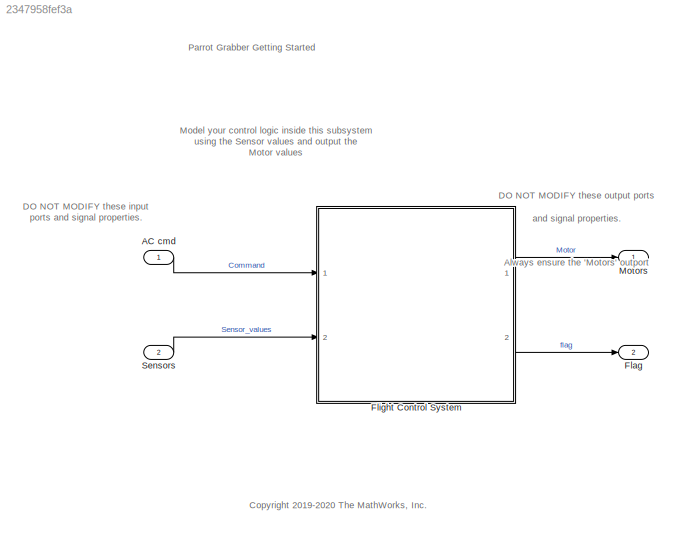
MODEL slx_2347958fef3a
KIND model
CONFIG AbsTol = auto
CONFIG EnableMultiTasking = off
CONFIG FixedStep = auto
CONFIG InitFcn = load('BusDefinitions.mat')
CONFIG MaxStep = auto
CONFIG MinStep = auto
CONFIG RelTol = 1e-3
CONFIG SampleTimeConstraint = Unconstrained
CONFIG SolverName = FixedStepAuto
CONFIG StartTime = 0.0
CONFIG StopTime = 100
BLOCK [Inport] AC cmd
  BusOutputAsStruct = on
  OutDataTypeStr = Bus: CommandBus
BLOCK [Outport] Flag
  OutDataTypeStr = uint8
  Port = 2
  PortDimensions = 1
  VectorParamsAs1DForOutWhenUnconnected = off
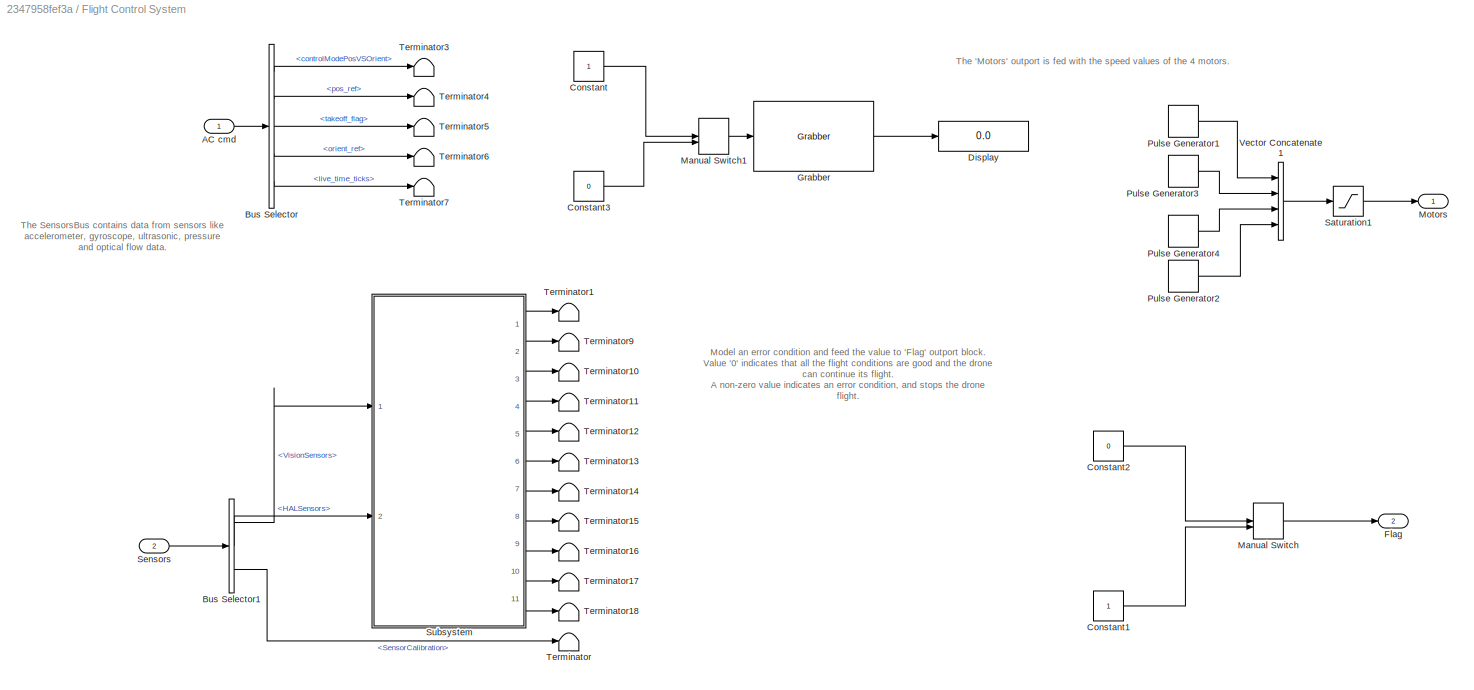
BLOCK [SubSystem] Flight Control System
  InitFcn = codertarget.parrot.internal.fcsSubsystemCallback(gcb);
  Ports = [2, 2]
  RTWSystemCode = Reusable function
  RequestExecContextInheritance = off
BLOCK [Inport] Flight Control System/AC cmd
BLOCK [BusSelector] Flight Control System/Bus Selector
  OutputSignals = controlModePosVSOrient,pos_ref,takeoff_flag,orient_ref,live_time_ticks
  Ports = [1, 5]
BLOCK [BusSelector] Flight Control System/Bus Selector1
  OutputSignals = VisionSensors,HALSensors,SensorCalibration
  Ports = [1, 3]
BLOCK [Constant] Flight Control System/Constant
BLOCK [Constant] Flight Control System/Constant1
  OutDataTypeStr = uint8
BLOCK [Constant] Flight Control System/Constant2
  OutDataTypeStr = uint8
  Value = 0
BLOCK [Constant] Flight Control System/Constant3
  Value = 0
BLOCK [Display] Flight Control System/Display
  Decimation = 1
  Ports = [1]
BLOCK [Outport] Flight Control System/Flag
  Port = 2
  VectorParamsAs1DForOutWhenUnconnected = off
BLOCK [Reference] Flight Control System/Grabber  REF=parrotlib/Grabber
  Ports = [1, 1]
  SourceBlock = parrotlib/Grabber
  SourceProductBaseCode = MINIDRONES
  SourceType = parrot.Grabber
BLOCK [ManualSwitch] Flight Control System/Manual Switch
BLOCK [ManualSwitch] Flight Control System/Manual Switch1
BLOCK [Outport] Flight Control System/Motors
  VectorParamsAs1DForOutWhenUnconnected = off
BLOCK [DiscretePulseGenerator] Flight Control System/Pulse Generator1
  Amplitude = 400
  Period = 1600
  Ports = [0, 1]
  PulseWidth = 400
  SampleTime = Ts
BLOCK [DiscretePulseGenerator] Flight Control System/Pulse Generator2
  Amplitude = 400
  Period = 1600
  PhaseDelay = 1200
  Ports = [0, 1]
  PulseWidth = 400
  SampleTime = Ts
BLOCK [DiscretePulseGenerator] Flight Control System/Pulse Generator3
  Amplitude = 400
  Period = 1600
  PhaseDelay = 400
  Ports = [0, 1]
  PulseWidth = 400
  SampleTime = Ts
BLOCK [DiscretePulseGenerator] Flight Control System/Pulse Generator4
  Amplitude = 400
  Period = 1600
  PhaseDelay = 800
  Ports = [0, 1]
  PulseWidth = 400
  SampleTime = Ts
BLOCK [Saturate] Flight Control System/Saturation1
  LowerLimit = 0
  OutDataTypeStr = single
  UpperLimit = 500
BLOCK [Inport] Flight Control System/Sensors
  Port = 2
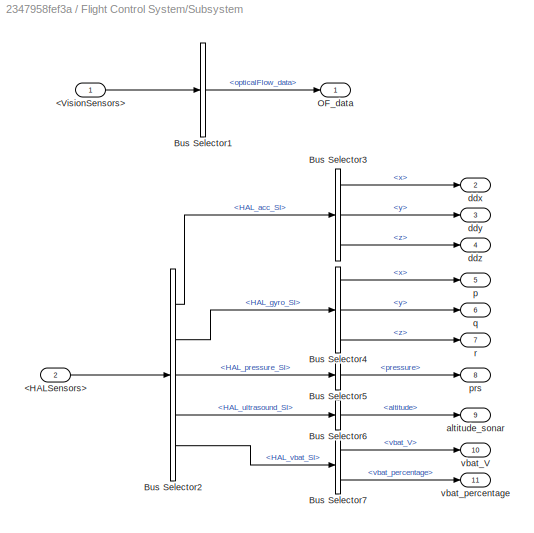
BLOCK [SubSystem] Flight Control System/Subsystem
  Ports = [2, 11]
  RequestExecContextInheritance = off
BLOCK [Inport] Flight Control System/Subsystem/<HALSensors>
  Port = 2
BLOCK [Inport] Flight Control System/Subsystem/<VisionSensors>
BLOCK [BusSelector] Flight Control System/Subsystem/Bus Selector1
  OutputSignals = opticalFlow_data
  Ports = [1, 1]
BLOCK [BusSelector] Flight Control System/Subsystem/Bus Selector2
  OutputSignals = HAL_acc_SI,HAL_gyro_SI,HAL_pressure_SI,HAL_ultrasound_SI,HAL_vbat_SI
  Ports = [1, 5]
BLOCK [BusSelector] Flight Control System/Subsystem/Bus Selector3
  OutputSignals = x,y,z
  Ports = [1, 3]
BLOCK [BusSelector] Flight Control System/Subsystem/Bus Selector4
  OutputSignals = x,y,z
  Ports = [1, 3]
BLOCK [BusSelector] Flight Control System/Subsystem/Bus Selector5
  OutputSignals = pressure
  Ports = [1, 1]
BLOCK [BusSelector] Flight Control System/Subsystem/Bus Selector6
  OutputSignals = altitude
  Ports = [1, 1]
BLOCK [BusSelector] Flight Control System/Subsystem/Bus Selector7
  OutputSignals = vbat_V,vbat_percentage
  Ports = [1, 2]
BLOCK [Outport] Flight Control System/Subsystem/OF_data
  VectorParamsAs1DForOutWhenUnconnected = off
BLOCK [Outport] Flight Control System/Subsystem/altitude_sonar
  Port = 9
  VectorParamsAs1DForOutWhenUnconnected = off
BLOCK [Outport] Flight Control System/Subsystem/ddx
  Port = 2
  VectorParamsAs1DForOutWhenUnconnected = off
BLOCK [Outport] Flight Control System/Subsystem/ddy
  Port = 3
  VectorParamsAs1DForOutWhenUnconnected = off
BLOCK [Outport] Flight Control System/Subsystem/ddz
  Port = 4
  VectorParamsAs1DForOutWhenUnconnected = off
BLOCK [Outport] Flight Control System/Subsystem/p
  Port = 5
  VectorParamsAs1DForOutWhenUnconnected = off
BLOCK [Outport] Flight Control System/Subsystem/prs
  Port = 8
  VectorParamsAs1DForOutWhenUnconnected = off
BLOCK [Outport] Flight Control System/Subsystem/q
  Port = 6
  VectorParamsAs1DForOutWhenUnconnected = off
BLOCK [Outport] Flight Control System/Subsystem/r
  Port = 7
  VectorParamsAs1DForOutWhenUnconnected = off
BLOCK [Outport] Flight Control System/Subsystem/vbat_V
  Port = 10
  VectorParamsAs1DForOutWhenUnconnected = off
BLOCK [Outport] Flight Control System/Subsystem/vbat_percentage
  Port = 11
  VectorParamsAs1DForOutWhenUnconnected = off
BLOCK [Terminator] Flight Control System/Terminator
BLOCK [Terminator] Flight Control System/Terminator1
BLOCK [Terminator] Flight Control System/Terminator10
BLOCK [Terminator] Flight Control System/Terminator11
BLOCK [Terminator] Flight Control System/Terminator12
BLOCK [Terminator] Flight Control System/Terminator13
BLOCK [Terminator] Flight Control System/Terminator14
BLOCK [Terminator] Flight Control System/Terminator15
BLOCK [Terminator] Flight Control System/Terminator16
BLOCK [Terminator] Flight Control System/Terminator17
BLOCK [Terminator] Flight Control System/Terminator18
BLOCK [Terminator] Flight Control System/Terminator3
BLOCK [Terminator] Flight Control System/Terminator4
BLOCK [Terminator] Flight Control System/Terminator5
BLOCK [Terminator] Flight Control System/Terminator6
BLOCK [Terminator] Flight Control System/Terminator7
BLOCK [Terminator] Flight Control System/Terminator9
BLOCK [Concatenate] Flight Control System/Vector Concatenate1
  NumInputs = 4
  Ports = [4, 1]
BLOCK [Outport] Motors
  OutDataTypeStr = single
  PortDimensions = [1 4]
  VectorParamsAs1DForOutWhenUnconnected = off
BLOCK [Inport] Sensors
  BusOutputAsStruct = on
  OutDataTypeStr = Bus: SensorsBus
  Port = 2
ANNOTATION (root): <copyright redacted>
ANNOTATION (root): DO NOT MODIFY these input ports and signal properties.
ANNOTATION (root): DO NOT MODIFY these output ports and signal properties. Always ensure the 'Motors' outport is fed with a 1 x 4 single vector. Always ensure the 'Flag' outport is fed with a 1 x 1 uint8 value.
ANNOTATION (root): Model your control logic inside this subsystem using the Sensor values and output the Motor values
ANNOTATION (root): Parrot Grabber Getting Started
ANNOTATION Flight Control System: Model an error condition and feed the value to 'Flag' outport block. Value '0' indicates that all the flight conditions are good and the drone can continue its flight. A non-zero value indicates an error condition, and stops the drone flight.
ANNOTATION Flight Control System: The 'Motors' outport is fed with the speed values of the 4 motors.
ANNOTATION Flight Control System: The SensorsBus contains data from sensors like accelerometer, gyroscope, ultrasonic, pressure and optical flow data.
LINE AC cmd:1 -> Flight Control System:1
LINE Flight Control System/AC cmd:1 -> Flight Control System/Bus Selector:1
LINE Flight Control System/Bus Selector1:1 -> Flight Control System/Subsystem:1
LINE Flight Control System/Bus Selector1:2 -> Flight Control System/Subsystem:2
LINE Flight Control System/Bus Selector1:3 -> Flight Control System/Terminator:1
LINE Flight Control System/Bus Selector:1 -> Flight Control System/Terminator3:1
LINE Flight Control System/Bus Selector:2 -> Flight Control System/Terminator4:1
LINE Flight Control System/Bus Selector:3 -> Flight Control System/Terminator5:1
LINE Flight Control System/Bus Selector:4 -> Flight Control System/Terminator6:1
LINE Flight Control System/Bus Selector:5 -> Flight Control System/Terminator7:1
LINE Flight Control System/Constant1:1 -> Flight Control System/Manual Switch:2
LINE Flight Control System/Constant2:1 -> Flight Control System/Manual Switch:1
LINE Flight Control System/Constant3:1 -> Flight Control System/Manual Switch1:2
LINE Flight Control System/Constant:1 -> Flight Control System/Manual Switch1:1
LINE Flight Control System/Grabber:1 -> Flight Control System/Display:1
LINE Flight Control System/Manual Switch1:1 -> Flight Control System/Grabber:1
LINE Flight Control System/Manual Switch:1 -> Flight Control System/Flag:1
LINE Flight Control System/Pulse Generator1:1 -> Flight Control System/Vector Concatenate1:1
LINE Flight Control System/Pulse Generator2:1 -> Flight Control System/Vector Concatenate1:4
LINE Flight Control System/Pulse Generator3:1 -> Flight Control System/Vector Concatenate1:2
LINE Flight Control System/Pulse Generator4:1 -> Flight Control System/Vector Concatenate1:3
LINE Flight Control System/Saturation1:1 -> Flight Control System/Motors:1
LINE Flight Control System/Sensors:1 -> Flight Control System/Bus Selector1:1
LINE Flight Control System/Subsystem/<HALSensors>:1 -> Flight Control System/Subsystem/Bus Selector2:1
LINE Flight Control System/Subsystem/<VisionSensors>:1 -> Flight Control System/Subsystem/Bus Selector1:1
LINE Flight Control System/Subsystem/Bus Selector1:1 -> Flight Control System/Subsystem/OF_data:1
LINE Flight Control System/Subsystem/Bus Selector2:1 -> Flight Control System/Subsystem/Bus Selector3:1
LINE Flight Control System/Subsystem/Bus Selector2:2 -> Flight Control System/Subsystem/Bus Selector4:1
LINE Flight Control System/Subsystem/Bus Selector2:3 -> Flight Control System/Subsystem/Bus Selector5:1
LINE Flight Control System/Subsystem/Bus Selector2:4 -> Flight Control System/Subsystem/Bus Selector6:1
LINE Flight Control System/Subsystem/Bus Selector2:5 -> Flight Control System/Subsystem/Bus Selector7:1
LINE Flight Control System/Subsystem/Bus Selector3:1 -> Flight Control System/Subsystem/ddx:1
LINE Flight Control System/Subsystem/Bus Selector3:2 -> Flight Control System/Subsystem/ddy:1
LINE Flight Control System/Subsystem/Bus Selector3:3 -> Flight Control System/Subsystem/ddz:1
LINE Flight Control System/Subsystem/Bus Selector4:1 -> Flight Control System/Subsystem/p:1
LINE Flight Control System/Subsystem/Bus Selector4:2 -> Flight Control System/Subsystem/q:1
LINE Flight Control System/Subsystem/Bus Selector4:3 -> Flight Control System/Subsystem/r:1
LINE Flight Control System/Subsystem/Bus Selector5:1 -> Flight Control System/Subsystem/prs:1
LINE Flight Control System/Subsystem/Bus Selector6:1 -> Flight Control System/Subsystem/altitude_sonar:1
LINE Flight Control System/Subsystem/Bus Selector7:1 -> Flight Control System/Subsystem/vbat_V:1
LINE Flight Control System/Subsystem/Bus Selector7:2 -> Flight Control System/Subsystem/vbat_percentage:1
LINE Flight Control System/Subsystem:1 -> Flight Control System/Terminator1:1
LINE Flight Control System/Subsystem:10 -> Flight Control System/Terminator17:1
LINE Flight Control System/Subsystem:11 -> Flight Control System/Terminator18:1
LINE Flight Control System/Subsystem:2 -> Flight Control System/Terminator9:1
LINE Flight Control System/Subsystem:3 -> Flight Control System/Terminator10:1
LINE Flight Control System/Subsystem:4 -> Flight Control System/Terminator11:1
LINE Flight Control System/Subsystem:5 -> Flight Control System/Terminator12:1
LINE Flight Control System/Subsystem:6 -> Flight Control System/Terminator13:1
LINE Flight Control System/Subsystem:7 -> Flight Control System/Terminator14:1
LINE Flight Control System/Subsystem:8 -> Flight Control System/Terminator15:1
LINE Flight Control System/Subsystem:9 -> Flight Control System/Terminator16:1
LINE Flight Control System/Vector Concatenate1:1 -> Flight Control System/Saturation1:1
LINE Flight Control System:1 -> Motors:1
LINE Flight Control System:2 -> Flag:1
LINE Sensors:1 -> Flight Control System:2
